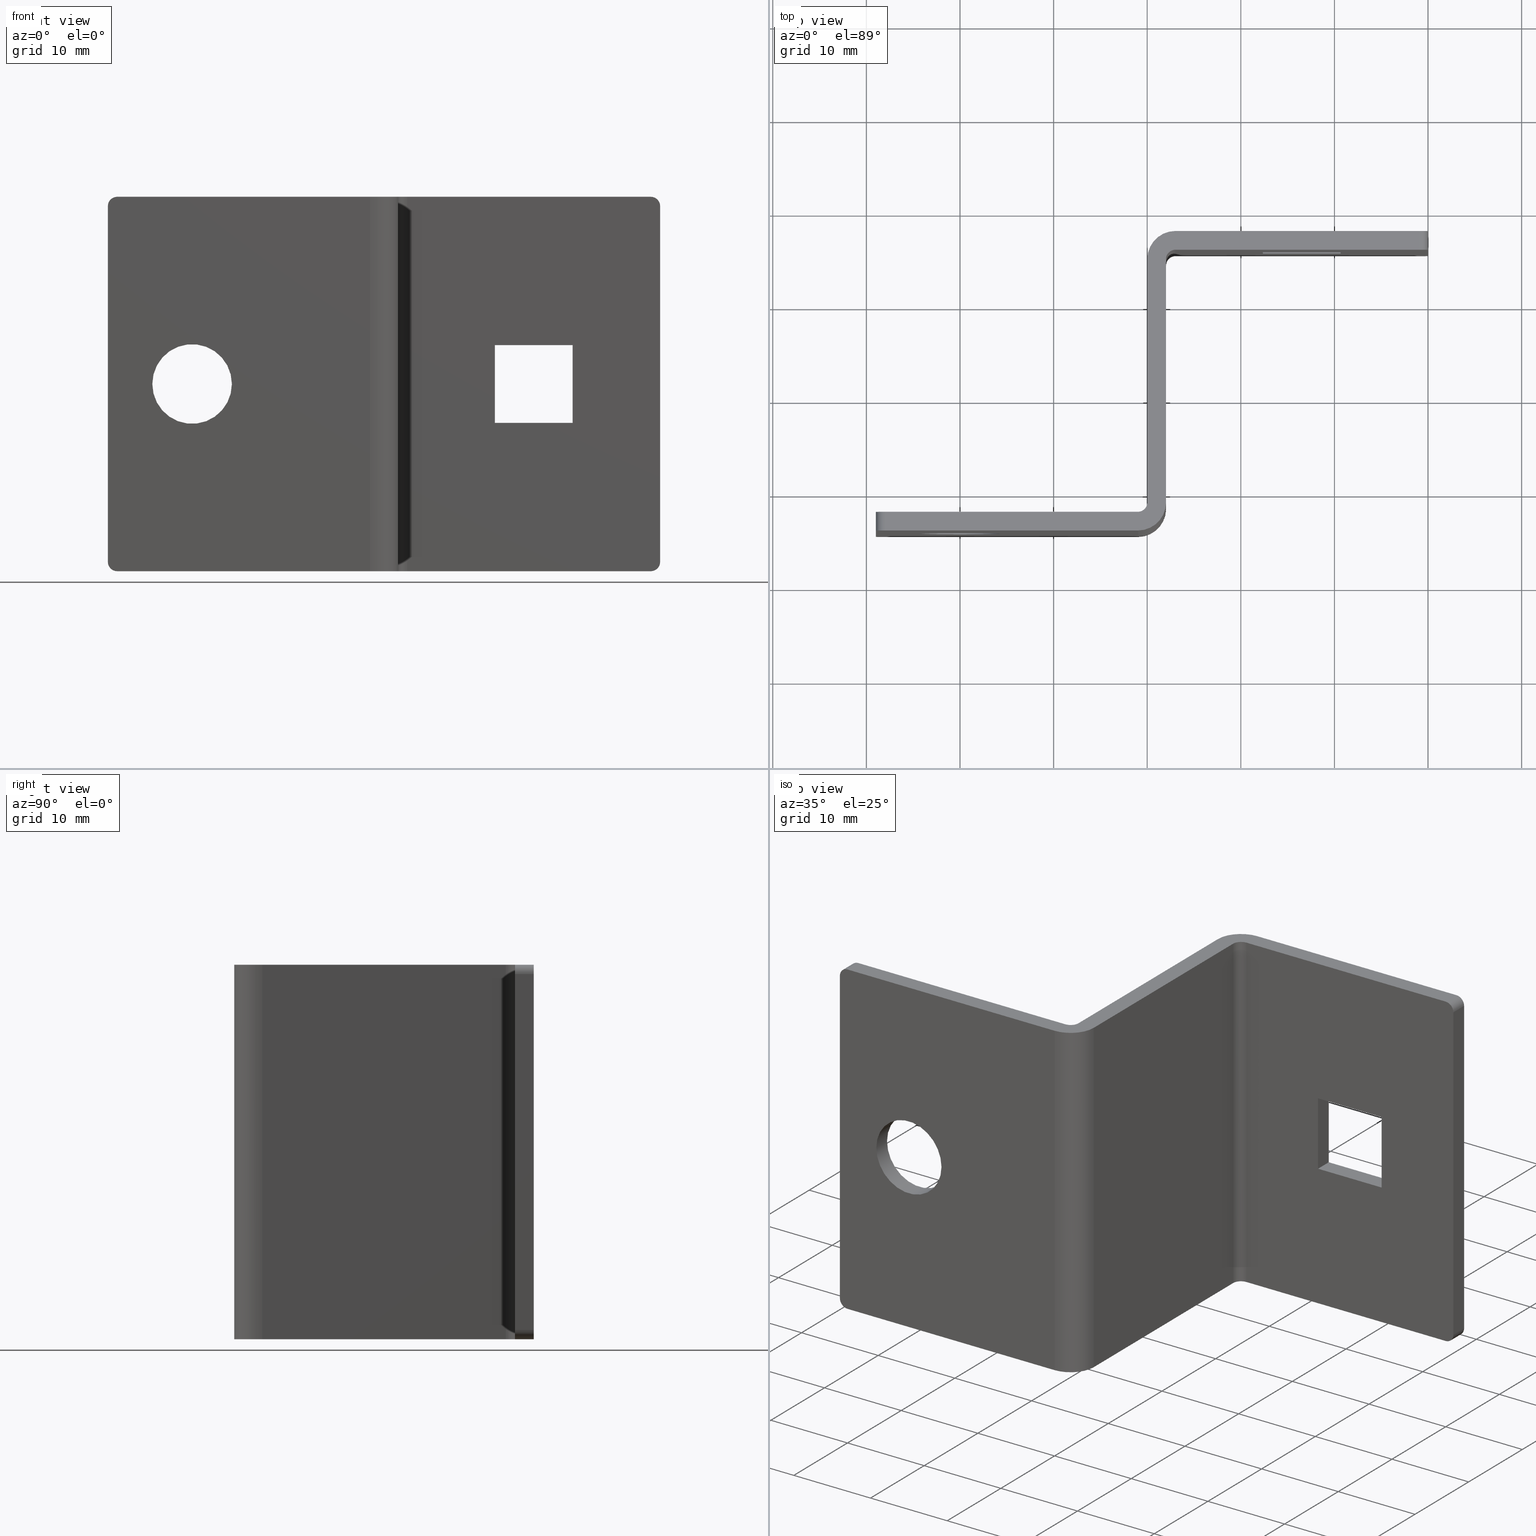
[diagram: canonical four-view strip — front | top / right | iso, engineering-drawing reading convention]
A machine part, canonical four-view strip (front | top / right | iso — engineering-drawing reading convention). The complete STEP part file that produces these views, byte-faithful:
ISO-10303-21;
HEADER;
/* Generated by software containing ST-Developer
 * from STEP Tools, Inc. (www.steptools.com) 
 */

FILE_DESCRIPTION(
/* description */ ('ANCORAGGIO A ZETA PER PANNELLATURE'),
/* implementation_level */ '2;1');

FILE_NAME(
/* name */ 
'Q:\\Catalogo\\2_Accessori Dierre\\Per Download Web e catalogo cartace
o\\CATALOGO ELEMENTI ASSEMBLAGGIO\\PAGINA 21\\DFXXX0000007.stp',
/* time_stamp */ '2018-06-19T09:00:35+02:00',
/* author */ ('fzagni'),
/* organization */ (''),
/* preprocessor_version */ 'ST-DEVELOPER v16.1',
/* originating_system */ 'Autodesk Inventor 2016',
/* authorisation */ '');

FILE_SCHEMA (('AUTOMOTIVE_DESIGN { 1 0 10303 214 3 1 1 }'));
ENDSEC;

DATA;
#10=MECHANICAL_DESIGN_GEOMETRIC_PRESENTATION_REPRESENTATION('',(#13),#753);
#11=SHAPE_REPRESENTATION_RELATIONSHIP('SRR','None',#762,#12);
#12=ADVANCED_BREP_SHAPE_REPRESENTATION('',(#14),#752);
#13=STYLED_ITEM('',(#771),#14);
#14=MANIFOLD_SOLID_BREP('Solido1',#451);
#15=PLANE('',#459);
#16=PLANE('',#461);
#17=PLANE('',#467);
#18=PLANE('',#468);
#19=PLANE('',#472);
#20=PLANE('',#473);
#21=PLANE('',#474);
#22=PLANE('',#475);
#23=PLANE('',#479);
#24=PLANE('',#486);
#25=PLANE('',#490);
#26=PLANE('',#491);
#27=PLANE('',#492);
#28=PLANE('',#493);
#29=LINE('',#633,#73);
#30=LINE('',#636,#74);
#31=LINE('',#639,#75);
#32=LINE('',#643,#76);
#33=LINE('',#645,#77);
#34=LINE('',#646,#78);
#35=LINE('',#649,#79);
#36=LINE('',#650,#80);
#37=LINE('',#654,#81);
#38=LINE('',#660,#82);
#39=LINE('',#663,#83);
#40=LINE('',#666,#84);
#41=LINE('',#668,#85);
#42=LINE('',#669,#86);
#43=LINE('',#672,#87);
#44=LINE('',#674,#88);
#45=LINE('',#676,#89);
#46=LINE('',#680,#90);
#47=LINE('',#682,#91);
#48=LINE('',#684,#92);
#49=LINE('',#685,#93);
#50=LINE('',#689,#94);
#51=LINE('',#692,#95);
#52=LINE('',#694,#96);
#53=LINE('',#695,#97);
#54=LINE('',#698,#98);
#55=LINE('',#699,#99);
#56=LINE('',#702,#100);
#57=LINE('',#703,#101);
#58=LINE('',#705,#102);
#59=LINE('',#711,#103);
#60=LINE('',#714,#104);
#61=LINE('',#717,#105);
#62=LINE('',#719,#106);
#63=LINE('',#720,#107);
#64=LINE('',#726,#108);
#65=LINE('',#732,#109);
#66=LINE('',#735,#110);
#67=LINE('',#737,#111);
#68=LINE('',#738,#112);
#69=LINE('',#743,#113);
#70=LINE('',#744,#114);
#71=LINE('',#746,#115);
#72=LINE('',#747,#116);
#73=VECTOR('',#506,2.);
#74=VECTOR('',#509,2.);
#75=VECTOR('',#512,38.);
#76=VECTOR('',#515,27.);
#77=VECTOR('',#516,40.);
#78=VECTOR('',#517,27.);
#79=VECTOR('',#520,38.);
#80=VECTOR('',#521,2.);
#81=VECTOR('',#526,2.);
#82=VECTOR('',#531,2.00000000000006);
#83=VECTOR('',#534,2.00000000000006);
#84=VECTOR('',#537,38.);
#85=VECTOR('',#538,2.00000000000006);
#86=VECTOR('',#539,38.);
#87=VECTOR('',#542,26.);
#88=VECTOR('',#543,40.);
#89=VECTOR('',#544,26.);
#90=VECTOR('',#547,8.3);
#91=VECTOR('',#548,8.3);
#92=VECTOR('',#549,8.3);
#93=VECTOR('',#550,8.30000000000001);
#94=VECTOR('',#555,2.00000000000006);
#95=VECTOR('',#558,2.00000000000004);
#96=VECTOR('',#559,8.3);
#97=VECTOR('',#560,2.00000000000004);
#98=VECTOR('',#563,8.30000000000001);
#99=VECTOR('',#564,2.00000000000002);
#100=VECTOR('',#567,8.3);
#101=VECTOR('',#568,2.00000000000002);
#102=VECTOR('',#571,8.3);
#103=VECTOR('',#576,40.);
#104=VECTOR('',#579,40.);
#105=VECTOR('',#582,26.);
#106=VECTOR('',#583,26.);
#107=VECTOR('',#584,40.);
#108=VECTOR('',#591,40.);
#109=VECTOR('',#598,40.);
#110=VECTOR('',#601,26.);
#111=VECTOR('',#602,26.);
#112=VECTOR('',#603,40.);
#113=VECTOR('',#612,26.);
#114=VECTOR('',#613,26.);
#115=VECTOR('',#616,27.);
#116=VECTOR('',#617,27.);
#117=FACE_BOUND('',#146,.T.);
#118=FACE_BOUND('',#149,.T.);
#119=FACE_BOUND('',#155,.T.);
#120=FACE_BOUND('',#168,.T.);
#121=FACE_BOUND('',#170,.T.);
#122=FACE_OUTER_BOUND('',#145,.T.);
#123=FACE_OUTER_BOUND('',#147,.T.);
#124=FACE_OUTER_BOUND('',#148,.T.);
#125=FACE_OUTER_BOUND('',#150,.T.);
#126=FACE_OUTER_BOUND('',#151,.T.);
#127=FACE_OUTER_BOUND('',#152,.T.);
#128=FACE_OUTER_BOUND('',#153,.T.);
#129=FACE_OUTER_BOUND('',#154,.T.);
#130=FACE_OUTER_BOUND('',#156,.T.);
#131=FACE_OUTER_BOUND('',#157,.T.);
#132=FACE_OUTER_BOUND('',#158,.T.);
#133=FACE_OUTER_BOUND('',#159,.T.);
#134=FACE_OUTER_BOUND('',#160,.T.);
#135=FACE_OUTER_BOUND('',#161,.T.);
#136=FACE_OUTER_BOUND('',#162,.T.);
#137=FACE_OUTER_BOUND('',#163,.T.);
#138=FACE_OUTER_BOUND('',#164,.T.);
#139=FACE_OUTER_BOUND('',#165,.T.);
#140=FACE_OUTER_BOUND('',#166,.T.);
#141=FACE_OUTER_BOUND('',#167,.T.);
#142=FACE_OUTER_BOUND('',#169,.T.);
#143=FACE_OUTER_BOUND('',#171,.T.);
#144=FACE_OUTER_BOUND('',#172,.T.);
#145=EDGE_LOOP('',(#295));
#146=EDGE_LOOP('',(#296));
#147=EDGE_LOOP('',(#297,#298,#299,#300));
#148=EDGE_LOOP('',(#301,#302,#303,#304,#305,#306));
#149=EDGE_LOOP('',(#307));
#150=EDGE_LOOP('',(#308,#309,#310,#311));
#151=EDGE_LOOP('',(#312,#313,#314,#315));
#152=EDGE_LOOP('',(#316,#317,#318,#319));
#153=EDGE_LOOP('',(#320,#321,#322,#323));
#154=EDGE_LOOP('',(#324,#325,#326,#327,#328,#329));
#155=EDGE_LOOP('',(#330,#331,#332,#333));
#156=EDGE_LOOP('',(#334,#335,#336,#337));
#157=EDGE_LOOP('',(#338,#339,#340,#341));
#158=EDGE_LOOP('',(#342,#343,#344,#345));
#159=EDGE_LOOP('',(#346,#347,#348,#349));
#160=EDGE_LOOP('',(#350,#351,#352,#353));
#161=EDGE_LOOP('',(#354,#355,#356,#357));
#162=EDGE_LOOP('',(#358,#359,#360,#361));
#163=EDGE_LOOP('',(#362,#363,#364,#365));
#164=EDGE_LOOP('',(#366,#367,#368,#369));
#165=EDGE_LOOP('',(#370,#371,#372,#373));
#166=EDGE_LOOP('',(#374,#375,#376,#377));
#167=EDGE_LOOP('',(#378,#379,#380,#381,#382,#383));
#168=EDGE_LOOP('',(#384,#385,#386,#387));
#169=EDGE_LOOP('',(#388,#389,#390,#391,#392,#393));
#170=EDGE_LOOP('',(#394));
#171=EDGE_LOOP('',(#395,#396,#397,#398,#399,#400,#401,#402,#403,#404,#405,
#406));
#172=EDGE_LOOP('',(#407,#408,#409,#410,#411,#412,#413,#414,#415,#416,#417,
#418));
#173=CIRCLE('',#454,4.25);
#174=CIRCLE('',#455,4.25);
#175=CIRCLE('',#457,1.);
#176=CIRCLE('',#458,1.);
#177=CIRCLE('',#460,1.);
#178=CIRCLE('',#463,1.);
#179=CIRCLE('',#465,1.);
#180=CIRCLE('',#466,1.);
#181=CIRCLE('',#469,1.);
#182=CIRCLE('',#471,1.);
#183=CIRCLE('',#477,1.00000000000001);
#184=CIRCLE('',#478,1.00000000000001);
#185=CIRCLE('',#481,3.);
#186=CIRCLE('',#482,3.);
#187=CIRCLE('',#484,1.00000000000001);
#188=CIRCLE('',#485,1.00000000000001);
#189=CIRCLE('',#488,3.);
#190=CIRCLE('',#489,3.);
#191=VERTEX_POINT('',#624);
#192=VERTEX_POINT('',#626);
#193=VERTEX_POINT('',#629);
#194=VERTEX_POINT('',#630);
#195=VERTEX_POINT('',#632);
#196=VERTEX_POINT('',#634);
#197=VERTEX_POINT('',#638);
#198=VERTEX_POINT('',#640);
#199=VERTEX_POINT('',#642);
#200=VERTEX_POINT('',#644);
#201=VERTEX_POINT('',#648);
#202=VERTEX_POINT('',#652);
#203=VERTEX_POINT('',#656);
#204=VERTEX_POINT('',#657);
#205=VERTEX_POINT('',#659);
#206=VERTEX_POINT('',#661);
#207=VERTEX_POINT('',#665);
#208=VERTEX_POINT('',#667);
#209=VERTEX_POINT('',#671);
#210=VERTEX_POINT('',#673);
#211=VERTEX_POINT('',#675);
#212=VERTEX_POINT('',#678);
#213=VERTEX_POINT('',#679);
#214=VERTEX_POINT('',#681);
#215=VERTEX_POINT('',#683);
#216=VERTEX_POINT('',#687);
#217=VERTEX_POINT('',#691);
#218=VERTEX_POINT('',#693);
#219=VERTEX_POINT('',#697);
#220=VERTEX_POINT('',#701);
#221=VERTEX_POINT('',#707);
#222=VERTEX_POINT('',#708);
#223=VERTEX_POINT('',#710);
#224=VERTEX_POINT('',#712);
#225=VERTEX_POINT('',#716);
#226=VERTEX_POINT('',#718);
#227=VERTEX_POINT('',#722);
#228=VERTEX_POINT('',#724);
#229=VERTEX_POINT('',#728);
#230=VERTEX_POINT('',#730);
#231=VERTEX_POINT('',#734);
#232=VERTEX_POINT('',#736);
#233=EDGE_CURVE('',#191,#191,#173,.T.);
#234=EDGE_CURVE('',#192,#192,#174,.T.);
#235=EDGE_CURVE('',#193,#194,#175,.T.);
#236=EDGE_CURVE('',#194,#195,#29,.T.);
#237=EDGE_CURVE('',#195,#196,#176,.T.);
#238=EDGE_CURVE('',#196,#193,#30,.T.);
#239=EDGE_CURVE('',#197,#193,#31,.T.);
#240=EDGE_CURVE('',#198,#197,#177,.T.);
#241=EDGE_CURVE('',#198,#199,#32,.T.);
#242=EDGE_CURVE('',#199,#200,#33,.T.);
#243=EDGE_CURVE('',#194,#200,#34,.T.);
#244=EDGE_CURVE('',#201,#196,#35,.T.);
#245=EDGE_CURVE('',#197,#201,#36,.T.);
#246=EDGE_CURVE('',#201,#202,#178,.T.);
#247=EDGE_CURVE('',#202,#198,#37,.T.);
#248=EDGE_CURVE('',#203,#204,#179,.T.);
#249=EDGE_CURVE('',#204,#205,#38,.T.);
#250=EDGE_CURVE('',#205,#206,#180,.T.);
#251=EDGE_CURVE('',#206,#203,#39,.T.);
#252=EDGE_CURVE('',#207,#206,#40,.T.);
#253=EDGE_CURVE('',#208,#207,#41,.T.);
#254=EDGE_CURVE('',#208,#203,#42,.T.);
#255=EDGE_CURVE('',#209,#205,#43,.T.);
#256=EDGE_CURVE('',#210,#209,#44,.T.);
#257=EDGE_CURVE('',#210,#211,#45,.T.);
#258=EDGE_CURVE('',#207,#211,#181,.T.);
#259=EDGE_CURVE('',#212,#213,#46,.T.);
#260=EDGE_CURVE('',#213,#214,#47,.T.);
#261=EDGE_CURVE('',#214,#215,#48,.T.);
#262=EDGE_CURVE('',#215,#212,#49,.T.);
#263=EDGE_CURVE('',#216,#208,#182,.T.);
#264=EDGE_CURVE('',#211,#216,#50,.T.);
#265=EDGE_CURVE('',#217,#214,#51,.T.);
#266=EDGE_CURVE('',#218,#217,#52,.T.);
#267=EDGE_CURVE('',#218,#215,#53,.T.);
#268=EDGE_CURVE('',#219,#218,#54,.T.);
#269=EDGE_CURVE('',#219,#212,#55,.T.);
#270=EDGE_CURVE('',#220,#219,#56,.T.);
#271=EDGE_CURVE('',#220,#213,#57,.T.);
#272=EDGE_CURVE('',#217,#220,#58,.T.);
#273=EDGE_CURVE('',#221,#222,#183,.T.);
#274=EDGE_CURVE('',#222,#223,#59,.T.);
#275=EDGE_CURVE('',#224,#223,#184,.T.);
#276=EDGE_CURVE('',#221,#224,#60,.T.);
#277=EDGE_CURVE('',#225,#221,#61,.T.);
#278=EDGE_CURVE('',#226,#224,#62,.T.);
#279=EDGE_CURVE('',#225,#226,#63,.T.);
#280=EDGE_CURVE('',#227,#225,#185,.T.);
#281=EDGE_CURVE('',#228,#226,#186,.T.);
#282=EDGE_CURVE('',#227,#228,#64,.T.);
#283=EDGE_CURVE('',#229,#210,#187,.T.);
#284=EDGE_CURVE('',#230,#209,#188,.T.);
#285=EDGE_CURVE('',#229,#230,#65,.T.);
#286=EDGE_CURVE('',#231,#229,#66,.T.);
#287=EDGE_CURVE('',#232,#230,#67,.T.);
#288=EDGE_CURVE('',#231,#232,#68,.T.);
#289=EDGE_CURVE('',#199,#231,#189,.T.);
#290=EDGE_CURVE('',#200,#232,#190,.T.);
#291=EDGE_CURVE('',#216,#227,#69,.T.);
#292=EDGE_CURVE('',#204,#228,#70,.T.);
#293=EDGE_CURVE('',#223,#195,#71,.T.);
#294=EDGE_CURVE('',#222,#202,#72,.T.);
#295=ORIENTED_EDGE('',*,*,#233,.F.);
#296=ORIENTED_EDGE('',*,*,#234,.F.);
#297=ORIENTED_EDGE('',*,*,#235,.T.);
#298=ORIENTED_EDGE('',*,*,#236,.T.);
#299=ORIENTED_EDGE('',*,*,#237,.T.);
#300=ORIENTED_EDGE('',*,*,#238,.T.);
#301=ORIENTED_EDGE('',*,*,#235,.F.);
#302=ORIENTED_EDGE('',*,*,#239,.F.);
#303=ORIENTED_EDGE('',*,*,#240,.F.);
#304=ORIENTED_EDGE('',*,*,#241,.T.);
#305=ORIENTED_EDGE('',*,*,#242,.T.);
#306=ORIENTED_EDGE('',*,*,#243,.F.);
#307=ORIENTED_EDGE('',*,*,#233,.T.);
#308=ORIENTED_EDGE('',*,*,#238,.F.);
#309=ORIENTED_EDGE('',*,*,#244,.F.);
#310=ORIENTED_EDGE('',*,*,#245,.F.);
#311=ORIENTED_EDGE('',*,*,#239,.T.);
#312=ORIENTED_EDGE('',*,*,#240,.T.);
#313=ORIENTED_EDGE('',*,*,#245,.T.);
#314=ORIENTED_EDGE('',*,*,#246,.T.);
#315=ORIENTED_EDGE('',*,*,#247,.T.);
#316=ORIENTED_EDGE('',*,*,#248,.T.);
#317=ORIENTED_EDGE('',*,*,#249,.T.);
#318=ORIENTED_EDGE('',*,*,#250,.T.);
#319=ORIENTED_EDGE('',*,*,#251,.T.);
#320=ORIENTED_EDGE('',*,*,#251,.F.);
#321=ORIENTED_EDGE('',*,*,#252,.F.);
#322=ORIENTED_EDGE('',*,*,#253,.F.);
#323=ORIENTED_EDGE('',*,*,#254,.T.);
#324=ORIENTED_EDGE('',*,*,#250,.F.);
#325=ORIENTED_EDGE('',*,*,#255,.F.);
#326=ORIENTED_EDGE('',*,*,#256,.F.);
#327=ORIENTED_EDGE('',*,*,#257,.T.);
#328=ORIENTED_EDGE('',*,*,#258,.F.);
#329=ORIENTED_EDGE('',*,*,#252,.T.);
#330=ORIENTED_EDGE('',*,*,#259,.T.);
#331=ORIENTED_EDGE('',*,*,#260,.T.);
#332=ORIENTED_EDGE('',*,*,#261,.T.);
#333=ORIENTED_EDGE('',*,*,#262,.T.);
#334=ORIENTED_EDGE('',*,*,#263,.T.);
#335=ORIENTED_EDGE('',*,*,#253,.T.);
#336=ORIENTED_EDGE('',*,*,#258,.T.);
#337=ORIENTED_EDGE('',*,*,#264,.T.);
#338=ORIENTED_EDGE('',*,*,#261,.F.);
#339=ORIENTED_EDGE('',*,*,#265,.F.);
#340=ORIENTED_EDGE('',*,*,#266,.F.);
#341=ORIENTED_EDGE('',*,*,#267,.T.);
#342=ORIENTED_EDGE('',*,*,#262,.F.);
#343=ORIENTED_EDGE('',*,*,#267,.F.);
#344=ORIENTED_EDGE('',*,*,#268,.F.);
#345=ORIENTED_EDGE('',*,*,#269,.T.);
#346=ORIENTED_EDGE('',*,*,#259,.F.);
#347=ORIENTED_EDGE('',*,*,#269,.F.);
#348=ORIENTED_EDGE('',*,*,#270,.F.);
#349=ORIENTED_EDGE('',*,*,#271,.T.);
#350=ORIENTED_EDGE('',*,*,#260,.F.);
#351=ORIENTED_EDGE('',*,*,#271,.F.);
#352=ORIENTED_EDGE('',*,*,#272,.F.);
#353=ORIENTED_EDGE('',*,*,#265,.T.);
#354=ORIENTED_EDGE('',*,*,#273,.T.);
#355=ORIENTED_EDGE('',*,*,#274,.T.);
#356=ORIENTED_EDGE('',*,*,#275,.F.);
#357=ORIENTED_EDGE('',*,*,#276,.F.);
#358=ORIENTED_EDGE('',*,*,#277,.T.);
#359=ORIENTED_EDGE('',*,*,#276,.T.);
#360=ORIENTED_EDGE('',*,*,#278,.F.);
#361=ORIENTED_EDGE('',*,*,#279,.F.);
#362=ORIENTED_EDGE('',*,*,#280,.T.);
#363=ORIENTED_EDGE('',*,*,#279,.T.);
#364=ORIENTED_EDGE('',*,*,#281,.F.);
#365=ORIENTED_EDGE('',*,*,#282,.F.);
#366=ORIENTED_EDGE('',*,*,#283,.T.);
#367=ORIENTED_EDGE('',*,*,#256,.T.);
#368=ORIENTED_EDGE('',*,*,#284,.F.);
#369=ORIENTED_EDGE('',*,*,#285,.F.);
#370=ORIENTED_EDGE('',*,*,#286,.T.);
#371=ORIENTED_EDGE('',*,*,#285,.T.);
#372=ORIENTED_EDGE('',*,*,#287,.F.);
#373=ORIENTED_EDGE('',*,*,#288,.F.);
#374=ORIENTED_EDGE('',*,*,#289,.T.);
#375=ORIENTED_EDGE('',*,*,#288,.T.);
#376=ORIENTED_EDGE('',*,*,#290,.F.);
#377=ORIENTED_EDGE('',*,*,#242,.F.);
#378=ORIENTED_EDGE('',*,*,#248,.F.);
#379=ORIENTED_EDGE('',*,*,#254,.F.);
#380=ORIENTED_EDGE('',*,*,#263,.F.);
#381=ORIENTED_EDGE('',*,*,#291,.T.);
#382=ORIENTED_EDGE('',*,*,#282,.T.);
#383=ORIENTED_EDGE('',*,*,#292,.F.);
#384=ORIENTED_EDGE('',*,*,#270,.T.);
#385=ORIENTED_EDGE('',*,*,#268,.T.);
#386=ORIENTED_EDGE('',*,*,#266,.T.);
#387=ORIENTED_EDGE('',*,*,#272,.T.);
#388=ORIENTED_EDGE('',*,*,#237,.F.);
#389=ORIENTED_EDGE('',*,*,#293,.F.);
#390=ORIENTED_EDGE('',*,*,#274,.F.);
#391=ORIENTED_EDGE('',*,*,#294,.T.);
#392=ORIENTED_EDGE('',*,*,#246,.F.);
#393=ORIENTED_EDGE('',*,*,#244,.T.);
#394=ORIENTED_EDGE('',*,*,#234,.T.);
#395=ORIENTED_EDGE('',*,*,#236,.F.);
#396=ORIENTED_EDGE('',*,*,#243,.T.);
#397=ORIENTED_EDGE('',*,*,#290,.T.);
#398=ORIENTED_EDGE('',*,*,#287,.T.);
#399=ORIENTED_EDGE('',*,*,#284,.T.);
#400=ORIENTED_EDGE('',*,*,#255,.T.);
#401=ORIENTED_EDGE('',*,*,#249,.F.);
#402=ORIENTED_EDGE('',*,*,#292,.T.);
#403=ORIENTED_EDGE('',*,*,#281,.T.);
#404=ORIENTED_EDGE('',*,*,#278,.T.);
#405=ORIENTED_EDGE('',*,*,#275,.T.);
#406=ORIENTED_EDGE('',*,*,#293,.T.);
#407=ORIENTED_EDGE('',*,*,#247,.F.);
#408=ORIENTED_EDGE('',*,*,#294,.F.);
#409=ORIENTED_EDGE('',*,*,#273,.F.);
#410=ORIENTED_EDGE('',*,*,#277,.F.);
#411=ORIENTED_EDGE('',*,*,#280,.F.);
#412=ORIENTED_EDGE('',*,*,#291,.F.);
#413=ORIENTED_EDGE('',*,*,#264,.F.);
#414=ORIENTED_EDGE('',*,*,#257,.F.);
#415=ORIENTED_EDGE('',*,*,#283,.F.);
#416=ORIENTED_EDGE('',*,*,#286,.F.);
#417=ORIENTED_EDGE('',*,*,#289,.F.);
#418=ORIENTED_EDGE('',*,*,#241,.F.);
#419=CYLINDRICAL_SURFACE('',#453,4.25);
#420=CYLINDRICAL_SURFACE('',#456,1.);
#421=CYLINDRICAL_SURFACE('',#462,1.);
#422=CYLINDRICAL_SURFACE('',#464,1.);
#423=CYLINDRICAL_SURFACE('',#470,1.);
#424=CYLINDRICAL_SURFACE('',#476,1.00000000000001);
#425=CYLINDRICAL_SURFACE('',#480,3.);
#426=CYLINDRICAL_SURFACE('',#483,1.00000000000001);
#427=CYLINDRICAL_SURFACE('',#487,3.);
#428=ADVANCED_FACE('',(#122,#117),#419,.F.);
#429=ADVANCED_FACE('',(#123),#420,.T.);
#430=ADVANCED_FACE('',(#124,#118),#15,.T.);
#431=ADVANCED_FACE('',(#125),#16,.T.);
#432=ADVANCED_FACE('',(#126),#421,.T.);
#433=ADVANCED_FACE('',(#127),#422,.T.);
#434=ADVANCED_FACE('',(#128),#17,.T.);
#435=ADVANCED_FACE('',(#129,#119),#18,.T.);
#436=ADVANCED_FACE('',(#130),#423,.T.);
#437=ADVANCED_FACE('',(#131),#19,.F.);
#438=ADVANCED_FACE('',(#132),#20,.F.);
#439=ADVANCED_FACE('',(#133),#21,.F.);
#440=ADVANCED_FACE('',(#134),#22,.F.);
#441=ADVANCED_FACE('',(#135),#424,.F.);
#442=ADVANCED_FACE('',(#136),#23,.T.);
#443=ADVANCED_FACE('',(#137),#425,.T.);
#444=ADVANCED_FACE('',(#138),#426,.F.);
#445=ADVANCED_FACE('',(#139),#24,.T.);
#446=ADVANCED_FACE('',(#140),#427,.T.);
#447=ADVANCED_FACE('',(#141,#120),#25,.T.);
#448=ADVANCED_FACE('',(#142,#121),#26,.T.);
#449=ADVANCED_FACE('',(#143),#27,.T.);
#450=ADVANCED_FACE('',(#144),#28,.F.);
#451=CLOSED_SHELL('',(#428,#429,#430,#431,#432,#433,#434,#435,#436,#437,
#438,#439,#440,#441,#442,#443,#444,#445,#446,#447,#448,#449,#450));
#452=AXIS2_PLACEMENT_3D('placement',#622,#494,#495);
#453=AXIS2_PLACEMENT_3D('',#623,#496,#497);
#454=AXIS2_PLACEMENT_3D('',#625,#498,#499);
#455=AXIS2_PLACEMENT_3D('',#627,#500,#501);
#456=AXIS2_PLACEMENT_3D('',#628,#502,#503);
#457=AXIS2_PLACEMENT_3D('',#631,#504,#505);
#458=AXIS2_PLACEMENT_3D('',#635,#507,#508);
#459=AXIS2_PLACEMENT_3D('',#637,#510,#511);
#460=AXIS2_PLACEMENT_3D('',#641,#513,#514);
#461=AXIS2_PLACEMENT_3D('',#647,#518,#519);
#462=AXIS2_PLACEMENT_3D('',#651,#522,#523);
#463=AXIS2_PLACEMENT_3D('',#653,#524,#525);
#464=AXIS2_PLACEMENT_3D('',#655,#527,#528);
#465=AXIS2_PLACEMENT_3D('',#658,#529,#530);
#466=AXIS2_PLACEMENT_3D('',#662,#532,#533);
#467=AXIS2_PLACEMENT_3D('',#664,#535,#536);
#468=AXIS2_PLACEMENT_3D('',#670,#540,#541);
#469=AXIS2_PLACEMENT_3D('',#677,#545,#546);
#470=AXIS2_PLACEMENT_3D('',#686,#551,#552);
#471=AXIS2_PLACEMENT_3D('',#688,#553,#554);
#472=AXIS2_PLACEMENT_3D('',#690,#556,#557);
#473=AXIS2_PLACEMENT_3D('',#696,#561,#562);
#474=AXIS2_PLACEMENT_3D('',#700,#565,#566);
#475=AXIS2_PLACEMENT_3D('',#704,#569,#570);
#476=AXIS2_PLACEMENT_3D('',#706,#572,#573);
#477=AXIS2_PLACEMENT_3D('',#709,#574,#575);
#478=AXIS2_PLACEMENT_3D('',#713,#577,#578);
#479=AXIS2_PLACEMENT_3D('',#715,#580,#581);
#480=AXIS2_PLACEMENT_3D('',#721,#585,#586);
#481=AXIS2_PLACEMENT_3D('',#723,#587,#588);
#482=AXIS2_PLACEMENT_3D('',#725,#589,#590);
#483=AXIS2_PLACEMENT_3D('',#727,#592,#593);
#484=AXIS2_PLACEMENT_3D('',#729,#594,#595);
#485=AXIS2_PLACEMENT_3D('',#731,#596,#597);
#486=AXIS2_PLACEMENT_3D('',#733,#599,#600);
#487=AXIS2_PLACEMENT_3D('',#739,#604,#605);
#488=AXIS2_PLACEMENT_3D('',#740,#606,#607);
#489=AXIS2_PLACEMENT_3D('',#741,#608,#609);
#490=AXIS2_PLACEMENT_3D('',#742,#610,#611);
#491=AXIS2_PLACEMENT_3D('',#745,#614,#615);
#492=AXIS2_PLACEMENT_3D('',#748,#618,#619);
#493=AXIS2_PLACEMENT_3D('',#749,#620,#621);
#494=DIRECTION('axis',(0.,0.,1.));
#495=DIRECTION('refdir',(1.,0.,0.));
#496=DIRECTION('center_axis',(3.1720657846433E-16,1.,0.));
#497=DIRECTION('ref_axis',(1.,-3.1720657846433E-16,0.));
#498=DIRECTION('center_axis',(0.,1.,0.));
#499=DIRECTION('ref_axis',(1.,-3.1720657846433E-16,0.));
#500=DIRECTION('center_axis',(-3.1720657846433E-16,-1.,0.));
#501=DIRECTION('ref_axis',(1.,-3.1720657846433E-16,0.));
#502=DIRECTION('center_axis',(0.,-1.,0.));
#503=DIRECTION('ref_axis',(-0.707106781186546,0.,0.707106781186549));
#504=DIRECTION('center_axis',(0.,1.,0.));
#505=DIRECTION('ref_axis',(-0.707106781186546,0.,0.707106781186549));
#506=DIRECTION('',(0.,1.,0.));
#507=DIRECTION('center_axis',(-3.1720657846433E-16,-1.,0.));
#508=DIRECTION('ref_axis',(-0.707106781186546,0.,0.707106781186549));
#509=DIRECTION('',(0.,-1.,0.));
#510=DIRECTION('center_axis',(0.,-1.,0.));
#511=DIRECTION('ref_axis',(1.,0.,0.));
#512=DIRECTION('',(0.,0.,1.));
#513=DIRECTION('center_axis',(0.,1.,0.));
#514=DIRECTION('ref_axis',(-0.707106781186548,0.,-0.707106781186547));
#515=DIRECTION('',(1.,0.,0.));
#516=DIRECTION('',(0.,0.,1.));
#517=DIRECTION('',(1.,0.,0.));
#518=DIRECTION('center_axis',(-1.,0.,0.));
#519=DIRECTION('ref_axis',(0.,-1.,0.));
#520=DIRECTION('',(0.,0.,1.));
#521=DIRECTION('',(0.,1.,0.));
#522=DIRECTION('center_axis',(0.,-1.,0.));
#523=DIRECTION('ref_axis',(-0.707106781186548,0.,-0.707106781186547));
#524=DIRECTION('center_axis',(-3.1720657846433E-16,-1.,0.));
#525=DIRECTION('ref_axis',(-0.707106781186548,0.,-0.707106781186547));
#526=DIRECTION('',(0.,-1.,0.));
#527=DIRECTION('center_axis',(0.,1.,0.));
#528=DIRECTION('ref_axis',(0.707106781186544,0.,0.707106781186551));
#529=DIRECTION('center_axis',(2.1316282072803E-15,-1.,0.));
#530=DIRECTION('ref_axis',(0.707106781186544,0.,0.707106781186551));
#531=DIRECTION('',(0.,-1.,0.));
#532=DIRECTION('center_axis',(0.,1.,0.));
#533=DIRECTION('ref_axis',(0.707106781186544,0.,0.707106781186551));
#534=DIRECTION('',(0.,1.,0.));
#535=DIRECTION('center_axis',(1.,0.,0.));
#536=DIRECTION('ref_axis',(0.,1.,0.));
#537=DIRECTION('',(0.,0.,1.));
#538=DIRECTION('',(0.,-1.,0.));
#539=DIRECTION('',(0.,0.,1.));
#540=DIRECTION('center_axis',(0.,-1.,0.));
#541=DIRECTION('ref_axis',(1.,0.,0.));
#542=DIRECTION('',(1.,0.,0.));
#543=DIRECTION('',(0.,0.,1.));
#544=DIRECTION('',(1.,0.,0.));
#545=DIRECTION('center_axis',(0.,1.,0.));
#546=DIRECTION('ref_axis',(0.707106781186546,0.,-0.707106781186549));
#547=DIRECTION('',(0.,0.,1.));
#548=DIRECTION('',(1.,0.,0.));
#549=DIRECTION('',(2.67523620391604E-16,0.,-1.));
#550=DIRECTION('',(-1.,0.,0.));
#551=DIRECTION('center_axis',(0.,1.,0.));
#552=DIRECTION('ref_axis',(0.707106781186546,0.,-0.707106781186549));
#553=DIRECTION('center_axis',(2.1316282072803E-15,-1.,0.));
#554=DIRECTION('ref_axis',(0.707106781186546,0.,-0.707106781186549));
#555=DIRECTION('',(0.,1.,0.));
#556=DIRECTION('center_axis',(1.,2.22044604925031E-15,2.67523620391604E-16));
#557=DIRECTION('ref_axis',(0.,0.,1.));
#558=DIRECTION('',(2.22044604925031E-15,-1.,0.));
#559=DIRECTION('',(-2.67523620391604E-16,-5.7026089534049E-31,1.));
#560=DIRECTION('',(2.22044604925031E-15,-1.,0.));
#561=DIRECTION('center_axis',(0.,0.,-1.));
#562=DIRECTION('ref_axis',(1.,1.4210854715202E-15,0.));
#563=DIRECTION('',(1.,2.1316282072803E-15,0.));
#564=DIRECTION('',(2.22044604925031E-15,-1.,0.));
#565=DIRECTION('center_axis',(-1.,-2.22044604925031E-15,0.));
#566=DIRECTION('ref_axis',(0.,0.,-1.));
#567=DIRECTION('',(0.,0.,-1.));
#568=DIRECTION('',(2.22044604925031E-15,-1.,0.));
#569=DIRECTION('center_axis',(0.,0.,1.));
#570=DIRECTION('ref_axis',(-1.,-1.4210854715202E-15,0.));
#571=DIRECTION('',(-1.,-2.1316282072803E-15,0.));
#572=DIRECTION('center_axis',(0.,0.,1.));
#573=DIRECTION('ref_axis',(-1.33226762955018E-14,1.,0.));
#574=DIRECTION('center_axis',(0.,0.,-1.));
#575=DIRECTION('ref_axis',(-1.33226762955018E-14,1.,0.));
#576=DIRECTION('',(0.,0.,1.));
#577=DIRECTION('center_axis',(0.,0.,-1.));
#578=DIRECTION('ref_axis',(-1.33226762955018E-14,1.,0.));
#579=DIRECTION('',(0.,0.,1.));
#580=DIRECTION('center_axis',(-1.,0.,0.));
#581=DIRECTION('ref_axis',(0.,-1.,0.));
#582=DIRECTION('',(0.,-1.,0.));
#583=DIRECTION('',(0.,-1.,0.));
#584=DIRECTION('',(0.,0.,1.));
#585=DIRECTION('center_axis',(0.,0.,1.));
#586=DIRECTION('ref_axis',(-5.92118946466751E-15,1.,0.));
#587=DIRECTION('center_axis',(0.,0.,1.));
#588=DIRECTION('ref_axis',(-5.92118946466751E-15,1.,0.));
#589=DIRECTION('center_axis',(0.,0.,1.));
#590=DIRECTION('ref_axis',(-5.92118946466751E-15,1.,0.));
#591=DIRECTION('',(0.,0.,1.));
#592=DIRECTION('center_axis',(0.,0.,1.));
#593=DIRECTION('ref_axis',(1.77635683940026E-14,-1.,0.));
#594=DIRECTION('center_axis',(0.,0.,-1.));
#595=DIRECTION('ref_axis',(1.77635683940026E-14,-1.,0.));
#596=DIRECTION('center_axis',(0.,0.,-1.));
#597=DIRECTION('ref_axis',(1.77635683940026E-14,-1.,0.));
#598=DIRECTION('',(0.,0.,1.));
#599=DIRECTION('center_axis',(1.,0.,0.));
#600=DIRECTION('ref_axis',(0.,1.,0.));
#601=DIRECTION('',(0.,1.,0.));
#602=DIRECTION('',(0.,1.,0.));
#603=DIRECTION('',(0.,0.,1.));
#604=DIRECTION('center_axis',(0.,0.,1.));
#605=DIRECTION('ref_axis',(0.,-1.,0.));
#606=DIRECTION('center_axis',(0.,0.,1.));
#607=DIRECTION('ref_axis',(0.,-1.,0.));
#608=DIRECTION('center_axis',(0.,0.,1.));
#609=DIRECTION('ref_axis',(0.,-1.,0.));
#610=DIRECTION('center_axis',(-2.1316282072803E-15,1.,0.));
#611=DIRECTION('ref_axis',(-1.,-1.4210854715202E-15,0.));
#612=DIRECTION('',(-1.,-2.1316282072803E-15,0.));
#613=DIRECTION('',(-1.,0.,0.));
#614=DIRECTION('center_axis',(3.1720657846433E-16,1.,0.));
#615=DIRECTION('ref_axis',(-1.,0.,0.));
#616=DIRECTION('',(-1.,3.1720657846433E-16,0.));
#617=DIRECTION('',(-1.,3.1720657846433E-16,0.));
#618=DIRECTION('center_axis',(0.,0.,1.));
#619=DIRECTION('ref_axis',(1.,0.,0.));
#620=DIRECTION('center_axis',(0.,0.,1.));
#621=DIRECTION('ref_axis',(1.,0.,0.));
#622=CARTESIAN_POINT('',(0.,0.,0.));
#623=CARTESIAN_POINT('Origin',(20.0125837680259,-40.4338693985623,20.));
#624=CARTESIAN_POINT('',(15.7625837680259,35.7006300239079,20.));
#625=CARTESIAN_POINT('Origin',(20.0125837680259,35.7006300239079,20.));
#626=CARTESIAN_POINT('',(24.2625837680259,37.7006300239079,20.));
#627=CARTESIAN_POINT('Origin',(20.0125837680259,37.7006300239079,20.));
#628=CARTESIAN_POINT('Origin',(12.0125837680259,37.2006300239079,39.));
#629=CARTESIAN_POINT('',(11.0125837680259,35.7006300239079,39.));
#630=CARTESIAN_POINT('',(12.0125837680259,35.7006300239079,40.));
#631=CARTESIAN_POINT('Origin',(12.0125837680259,35.7006300239079,39.));
#632=CARTESIAN_POINT('',(12.0125837680259,37.7006300239079,40.));
#633=CARTESIAN_POINT('',(12.0125837680259,37.2006300239079,40.));
#634=CARTESIAN_POINT('',(11.0125837680259,37.7006300239079,39.));
#635=CARTESIAN_POINT('Origin',(12.0125837680259,37.7006300239079,39.));
#636=CARTESIAN_POINT('',(11.0125837680259,37.2006300239079,39.));
#637=CARTESIAN_POINT('Origin',(11.0125837680259,35.7006300239079,0.));
#638=CARTESIAN_POINT('',(11.0125837680259,35.7006300239079,1.));
#639=CARTESIAN_POINT('',(11.0125837680259,35.7006300239079,0.));
#640=CARTESIAN_POINT('',(12.0125837680259,35.7006300239079,0.));
#641=CARTESIAN_POINT('Origin',(12.0125837680259,35.7006300239079,1.));
#642=CARTESIAN_POINT('',(39.0125837680259,35.7006300239079,0.));
#643=CARTESIAN_POINT('',(11.0125837680259,35.7006300239079,0.));
#644=CARTESIAN_POINT('',(39.0125837680259,35.7006300239079,40.));
#645=CARTESIAN_POINT('',(39.0125837680259,35.7006300239079,0.));
#646=CARTESIAN_POINT('',(11.0125837680259,35.7006300239079,40.));
#647=CARTESIAN_POINT('Origin',(11.0125837680259,37.7006300239079,0.));
#648=CARTESIAN_POINT('',(11.0125837680259,37.7006300239079,1.));
#649=CARTESIAN_POINT('',(11.0125837680259,37.7006300239079,0.));
#650=CARTESIAN_POINT('',(11.0125837680259,37.2006300239079,1.));
#651=CARTESIAN_POINT('Origin',(12.0125837680259,37.2006300239079,1.));
#652=CARTESIAN_POINT('',(12.0125837680259,37.7006300239079,0.));
#653=CARTESIAN_POINT('Origin',(12.0125837680259,37.7006300239079,1.));
#654=CARTESIAN_POINT('',(12.0125837680259,37.2006300239079,0.));
#655=CARTESIAN_POINT('Origin',(69.0125837680259,51.2006300239079,39.));
#656=CARTESIAN_POINT('',(70.0125837680259,67.700630023908,39.));
#657=CARTESIAN_POINT('',(69.0125837680259,67.700630023908,40.));
#658=CARTESIAN_POINT('Origin',(69.0125837680259,67.700630023908,39.));
#659=CARTESIAN_POINT('',(69.0125837680259,65.7006300239079,40.));
#660=CARTESIAN_POINT('',(69.0125837680259,51.2006300239079,40.));
#661=CARTESIAN_POINT('',(70.0125837680259,65.7006300239079,39.));
#662=CARTESIAN_POINT('Origin',(69.0125837680259,65.7006300239079,39.));
#663=CARTESIAN_POINT('',(70.0125837680259,51.2006300239079,39.));
#664=CARTESIAN_POINT('Origin',(70.0125837680259,65.7006300239079,0.));
#665=CARTESIAN_POINT('',(70.0125837680259,65.7006300239079,1.));
#666=CARTESIAN_POINT('',(70.0125837680259,65.7006300239079,0.));
#667=CARTESIAN_POINT('',(70.0125837680259,67.700630023908,1.));
#668=CARTESIAN_POINT('',(70.0125837680259,51.2006300239079,1.));
#669=CARTESIAN_POINT('',(70.0125837680259,67.700630023908,0.));
#670=CARTESIAN_POINT('Origin',(52.3625837680534,65.7006300239079,0.));
#671=CARTESIAN_POINT('',(43.0125837680259,65.7006300239079,40.));
#672=CARTESIAN_POINT('',(43.0125837680259,65.7006300239079,40.));
#673=CARTESIAN_POINT('',(43.0125837680259,65.7006300239079,0.));
#674=CARTESIAN_POINT('',(43.0125837680259,65.7006300239079,0.));
#675=CARTESIAN_POINT('',(69.0125837680259,65.7006300239079,0.));
#676=CARTESIAN_POINT('',(43.0125837680259,65.7006300239079,0.));
#677=CARTESIAN_POINT('Origin',(69.0125837680259,65.7006300239079,1.));
#678=CARTESIAN_POINT('',(52.3625837680259,65.7006300239079,15.85));
#679=CARTESIAN_POINT('',(52.3625837680259,65.7006300239079,24.15));
#680=CARTESIAN_POINT('',(52.3625837680259,65.7006300239079,12.075));
#681=CARTESIAN_POINT('',(60.6625837680259,65.7006300239079,24.15));
#682=CARTESIAN_POINT('',(56.5125837680397,65.7006300239079,24.15));
#683=CARTESIAN_POINT('',(60.6625837680259,65.7006300239079,15.85));
#684=CARTESIAN_POINT('',(60.6625837680259,65.7006300239079,7.925));
#685=CARTESIAN_POINT('',(52.3625837680397,65.7006300239079,15.85));
#686=CARTESIAN_POINT('Origin',(69.0125837680259,51.2006300239079,1.));
#687=CARTESIAN_POINT('',(69.0125837680259,67.700630023908,0.));
#688=CARTESIAN_POINT('Origin',(69.0125837680259,67.700630023908,1.));
#689=CARTESIAN_POINT('',(69.0125837680259,51.2006300239079,0.));
#690=CARTESIAN_POINT('Origin',(60.6625837680259,67.700630023908,15.85));
#691=CARTESIAN_POINT('',(60.6625837680259,67.700630023908,24.15));
#692=CARTESIAN_POINT('',(60.6625837680259,67.700630023908,24.15));
#693=CARTESIAN_POINT('',(60.6625837680259,67.700630023908,15.85));
#694=CARTESIAN_POINT('',(60.6625837680259,67.700630023908,7.925));
#695=CARTESIAN_POINT('',(60.6625837680259,67.700630023908,15.85));
#696=CARTESIAN_POINT('Origin',(52.3625837680259,67.700630023908,15.85));
#697=CARTESIAN_POINT('',(52.3625837680259,67.700630023908,15.85));
#698=CARTESIAN_POINT('',(56.5125837680397,67.700630023908,15.85));
#699=CARTESIAN_POINT('',(52.3625837680259,67.700630023908,15.85));
#700=CARTESIAN_POINT('Origin',(52.3625837680259,67.700630023908,24.15));
#701=CARTESIAN_POINT('',(52.3625837680259,67.700630023908,24.15));
#702=CARTESIAN_POINT('',(52.3625837680259,67.700630023908,12.075));
#703=CARTESIAN_POINT('',(52.3625837680259,67.700630023908,24.15));
#704=CARTESIAN_POINT('Origin',(60.6625837680259,67.700630023908,24.15));
#705=CARTESIAN_POINT('',(60.6625837680397,67.700630023908,24.15));
#706=CARTESIAN_POINT('Origin',(39.0125837680259,38.7006300239079,0.));
#707=CARTESIAN_POINT('',(40.0125837680259,38.7006300239079,0.));
#708=CARTESIAN_POINT('',(39.0125837680259,37.7006300239079,0.));
#709=CARTESIAN_POINT('Origin',(39.0125837680259,38.7006300239079,0.));
#710=CARTESIAN_POINT('',(39.0125837680259,37.7006300239079,40.));
#711=CARTESIAN_POINT('',(39.0125837680259,37.7006300239079,0.));
#712=CARTESIAN_POINT('',(40.0125837680259,38.7006300239079,40.));
#713=CARTESIAN_POINT('Origin',(39.0125837680259,38.7006300239079,40.));
#714=CARTESIAN_POINT('',(40.0125837680259,38.7006300239079,0.));
#715=CARTESIAN_POINT('Origin',(40.0125837680259,64.7006300239079,0.));
#716=CARTESIAN_POINT('',(40.0125837680259,64.7006300239079,0.));
#717=CARTESIAN_POINT('',(40.0125837680259,64.7006300239079,0.));
#718=CARTESIAN_POINT('',(40.0125837680259,64.7006300239079,40.));
#719=CARTESIAN_POINT('',(40.0125837680259,64.7006300239079,40.));
#720=CARTESIAN_POINT('',(40.0125837680259,64.7006300239079,0.));
#721=CARTESIAN_POINT('Origin',(43.0125837680259,64.7006300239079,0.));
#722=CARTESIAN_POINT('',(43.0125837680259,67.7006300239079,0.));
#723=CARTESIAN_POINT('Origin',(43.0125837680259,64.7006300239079,0.));
#724=CARTESIAN_POINT('',(43.0125837680259,67.7006300239079,40.));
#725=CARTESIAN_POINT('Origin',(43.0125837680259,64.7006300239079,40.));
#726=CARTESIAN_POINT('',(43.0125837680259,67.7006300239079,0.));
#727=CARTESIAN_POINT('Origin',(43.0125837680259,64.7006300239079,0.));
#728=CARTESIAN_POINT('',(42.0125837680259,64.7006300239079,0.));
#729=CARTESIAN_POINT('Origin',(43.0125837680259,64.7006300239079,0.));
#730=CARTESIAN_POINT('',(42.0125837680259,64.7006300239079,40.));
#731=CARTESIAN_POINT('Origin',(43.0125837680259,64.7006300239079,40.));
#732=CARTESIAN_POINT('',(42.0125837680259,64.7006300239079,0.));
#733=CARTESIAN_POINT('Origin',(42.0125837680259,38.7006300239079,0.));
#734=CARTESIAN_POINT('',(42.0125837680259,38.7006300239079,0.));
#735=CARTESIAN_POINT('',(42.0125837680259,38.7006300239079,0.));
#736=CARTESIAN_POINT('',(42.0125837680259,38.7006300239079,40.));
#737=CARTESIAN_POINT('',(42.0125837680259,38.7006300239079,40.));
#738=CARTESIAN_POINT('',(42.0125837680259,38.7006300239079,0.));
#739=CARTESIAN_POINT('Origin',(39.0125837680259,38.7006300239079,0.));
#740=CARTESIAN_POINT('Origin',(39.0125837680259,38.7006300239079,0.));
#741=CARTESIAN_POINT('Origin',(39.0125837680259,38.7006300239079,40.));
#742=CARTESIAN_POINT('Origin',(60.6625837680534,67.700630023908,0.));
#743=CARTESIAN_POINT('',(68.0125837680259,67.700630023908,0.));
#744=CARTESIAN_POINT('',(70.0125837680259,67.700630023908,40.));
#745=CARTESIAN_POINT('Origin',(15.7625837680268,37.7006300239079,0.));
#746=CARTESIAN_POINT('',(39.0125837680259,37.7006300239079,40.));
#747=CARTESIAN_POINT('',(39.0125837680259,37.7006300239079,0.));
#748=CARTESIAN_POINT('Origin',(13.3875837680263,36.7006300239079,40.));
#749=CARTESIAN_POINT('Origin',(13.3875837680263,36.7006300239079,0.));
#750=UNCERTAINTY_MEASURE_WITH_UNIT(LENGTH_MEASURE(0.01),#754,
'DISTANCE_ACCURACY_VALUE',
'Maximum model space distance between geometric entities at asserted c
onnectivities');
#751=UNCERTAINTY_MEASURE_WITH_UNIT(LENGTH_MEASURE(1.E-6),#754,
'DISTANCE_ACCURACY_VALUE',
'Maximum model space distance between geometric entities at asserted c
onnectivities');
#752=(
GEOMETRIC_REPRESENTATION_CONTEXT(3)
GLOBAL_UNCERTAINTY_ASSIGNED_CONTEXT((#750))
GLOBAL_UNIT_ASSIGNED_CONTEXT((#754,#757,#755))
REPRESENTATION_CONTEXT('','3D')
);
#753=(
GEOMETRIC_REPRESENTATION_CONTEXT(3)
GLOBAL_UNCERTAINTY_ASSIGNED_CONTEXT((#751))
GLOBAL_UNIT_ASSIGNED_CONTEXT((#754,#757,#755))
REPRESENTATION_CONTEXT('','3D')
);
#754=(
LENGTH_UNIT()
NAMED_UNIT(*)
SI_UNIT(.MILLI.,.METRE.)
);
#755=(
NAMED_UNIT(*)
SI_UNIT($,.STERADIAN.)
SOLID_ANGLE_UNIT()
);
#756=DIMENSIONAL_EXPONENTS(0.,0.,0.,0.,0.,0.,0.);
#757=(
CONVERSION_BASED_UNIT('degree',#759)
NAMED_UNIT(#756)
PLANE_ANGLE_UNIT()
);
#758=(
NAMED_UNIT(*)
PLANE_ANGLE_UNIT()
SI_UNIT($,.RADIAN.)
);
#759=PLANE_ANGLE_MEASURE_WITH_UNIT(PLANE_ANGLE_MEASURE(0.01745329252),#758);
#760=SHAPE_DEFINITION_REPRESENTATION(#761,#762);
#761=PRODUCT_DEFINITION_SHAPE('',$,#764);
#762=SHAPE_REPRESENTATION('',(#452),#752);
#763=PRODUCT_DEFINITION_CONTEXT('part definition',#768,'design');
#764=PRODUCT_DEFINITION('440000006571','440000006571',#765,#763);
#765=PRODUCT_DEFINITION_FORMATION('','A',#770);
#766=PRODUCT_RELATED_PRODUCT_CATEGORY('440000006571','440000006571',(#770));
#767=APPLICATION_PROTOCOL_DEFINITION('international standard',
'automotive_design',2009,#768);
#768=APPLICATION_CONTEXT(
'Core Data for Automotive Mechanical Design Process');
#769=PRODUCT_CONTEXT('part definition',#768,'mechanical');
#770=PRODUCT('440000006571','440000006571',$,(#769));
#771=PRESENTATION_STYLE_ASSIGNMENT((#772));
#772=SURFACE_STYLE_USAGE(.BOTH.,#773);
#773=SURFACE_SIDE_STYLE('',(#774));
#774=SURFACE_STYLE_FILL_AREA(#775);
#775=FILL_AREA_STYLE('',(#776));
#776=FILL_AREA_STYLE_COLOUR('',#777);
#777=COLOUR_RGB('',0.501960784313725,0.501960784313725,0.501960784313725);
ENDSEC;
END-ISO-10303-21;
